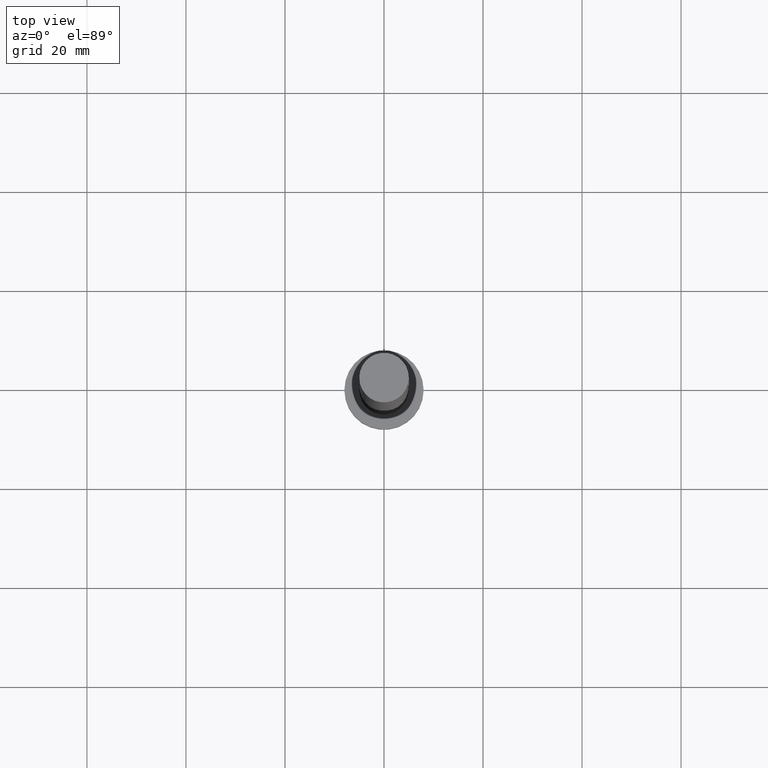
[diagram: clean part render]
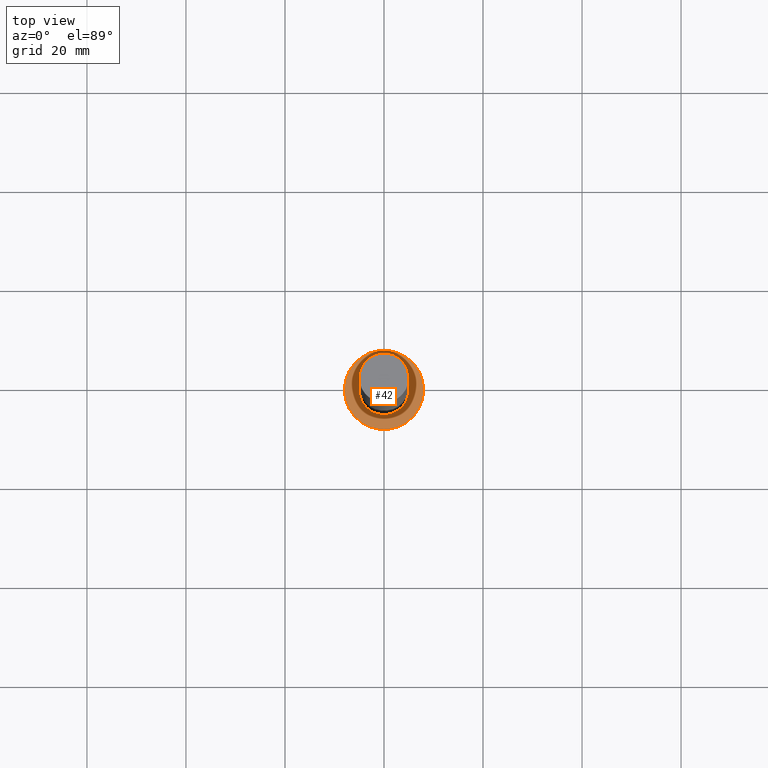
[diagram: same view with one face highlighted and labeled with its STEP entity id]
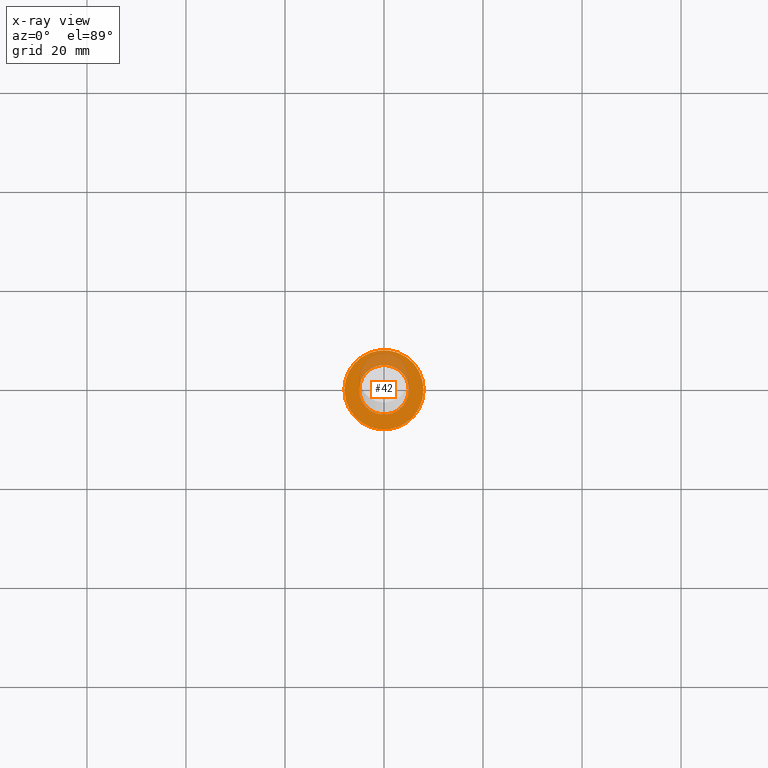
[diagram: x-ray of the same camera — body ghosted, the highlighted face saturated]
A machine part, top view. The second image highlights one B-rep face of the part: STEP entity #42.
The next image is the same camera in x-ray: the body ghosted, the highlighted face saturated — about 20% of this face is hidden behind the body in this view.
In plain terms, the highlighted planar face has unit normal (0, 0, 1).
Its self-contained STEP definition (entity closure, byte-faithful):
#11 = DIRECTION ( 'NONE',  ( 1.000000000000000000, 0.000000000000000000, 0.000000000000000000 ) ) ;
#15 = DIRECTION ( 'NONE',  ( 1.000000000000000000, 0.000000000000000000, 0.000000000000000000 ) ) ;
#25 = AXIS2_PLACEMENT_3D ( 'NONE', #128, #29, #104 ) ;
#29 = DIRECTION ( 'NONE',  ( 0.000000000000000000, 0.000000000000000000, 1.000000000000000000 ) ) ;
#42 = ADVANCED_FACE ( 'NONE', ( #227, #50 ), #122, .T. ) ;
#44 = AXIS2_PLACEMENT_3D ( 'NONE', #168, #231, #113 ) ;
#45 = EDGE_LOOP ( 'NONE', ( #127, #61 ) ) ;
#50 = FACE_OUTER_BOUND ( 'NONE', #155, .T. ) ;
#51 = DIRECTION ( 'NONE',  ( 0.000000000000000000, 0.000000000000000000, 1.000000000000000000 ) ) ;
#58 = CIRCLE ( 'NONE', #86, 5.000000000000000888 ) ;
#60 = DIRECTION ( 'NONE',  ( 1.000000000000000000, 0.000000000000000000, 0.000000000000000000 ) ) ;
#61 = ORIENTED_EDGE ( 'NONE', *, *, #132, .F. ) ;
#63 = CARTESIAN_POINT ( 'NONE',  ( 8.000000000000000000, 9.797174393178825657E-16, 5.000000000000000000 ) ) ;
#65 = EDGE_CURVE ( 'NONE', #164, #66, #58, .T. ) ;
#66 = VERTEX_POINT ( 'NONE', #206 ) ;
#75 = VERTEX_POINT ( 'NONE', #63 ) ;
#86 = AXIS2_PLACEMENT_3D ( 'NONE', #241, #244, #60 ) ;
#103 = CARTESIAN_POINT ( 'NONE',  ( -8.000000000000000000, 0.000000000000000000, 5.000000000000000000 ) ) ;
#104 = DIRECTION ( 'NONE',  ( 1.000000000000000000, 0.000000000000000000, -0.000000000000000000 ) ) ;
#107 = VERTEX_POINT ( 'NONE', #103 ) ;
#113 = DIRECTION ( 'NONE',  ( 1.000000000000000000, 0.000000000000000000, 0.000000000000000000 ) ) ;
#118 = CIRCLE ( 'NONE', #189, 5.000000000000000888 ) ;
#122 = PLANE ( 'NONE',  #25 ) ;
#124 = AXIS2_PLACEMENT_3D ( 'NONE', #211, #149, #11 ) ;
#127 = ORIENTED_EDGE ( 'NONE', *, *, #65, .F. ) ;
#128 = CARTESIAN_POINT ( 'NONE',  ( 0.000000000000000000, 0.000000000000000000, 5.000000000000000000 ) ) ;
#132 = EDGE_CURVE ( 'NONE', #66, #164, #118, .T. ) ;
#133 = CARTESIAN_POINT ( 'NONE',  ( -5.000000000000000888, 0.000000000000000000, 5.000000000000000000 ) ) ;
#149 = DIRECTION ( 'NONE',  ( 0.000000000000000000, 0.000000000000000000, 1.000000000000000000 ) ) ;
#151 = CIRCLE ( 'NONE', #44, 8.000000000000000000 ) ;
#155 = EDGE_LOOP ( 'NONE', ( #201, #223 ) ) ;
#157 = EDGE_CURVE ( 'NONE', #107, #75, #151, .T. ) ;
#164 = VERTEX_POINT ( 'NONE', #133 ) ;
#168 = CARTESIAN_POINT ( 'NONE',  ( 0.000000000000000000, 0.000000000000000000, 5.000000000000000000 ) ) ;
#187 = EDGE_CURVE ( 'NONE', #75, #107, #249, .T. ) ;
#189 = AXIS2_PLACEMENT_3D ( 'NONE', #228, #51, #15 ) ;
#201 = ORIENTED_EDGE ( 'NONE', *, *, #157, .T. ) ;
#206 = CARTESIAN_POINT ( 'NONE',  ( 5.000000000000000888, 6.123233995736767268E-16, 5.000000000000000000 ) ) ;
#211 = CARTESIAN_POINT ( 'NONE',  ( 0.000000000000000000, 0.000000000000000000, 5.000000000000000000 ) ) ;
#223 = ORIENTED_EDGE ( 'NONE', *, *, #187, .T. ) ;
#227 = FACE_BOUND ( 'NONE', #45, .T. ) ;
#228 = CARTESIAN_POINT ( 'NONE',  ( 0.000000000000000000, 0.000000000000000000, 5.000000000000000000 ) ) ;
#231 = DIRECTION ( 'NONE',  ( 0.000000000000000000, 0.000000000000000000, 1.000000000000000000 ) ) ;
#241 = CARTESIAN_POINT ( 'NONE',  ( 0.000000000000000000, 0.000000000000000000, 5.000000000000000000 ) ) ;
#244 = DIRECTION ( 'NONE',  ( 0.000000000000000000, 0.000000000000000000, 1.000000000000000000 ) ) ;
#249 = CIRCLE ( 'NONE', #124, 8.000000000000000000 ) ;